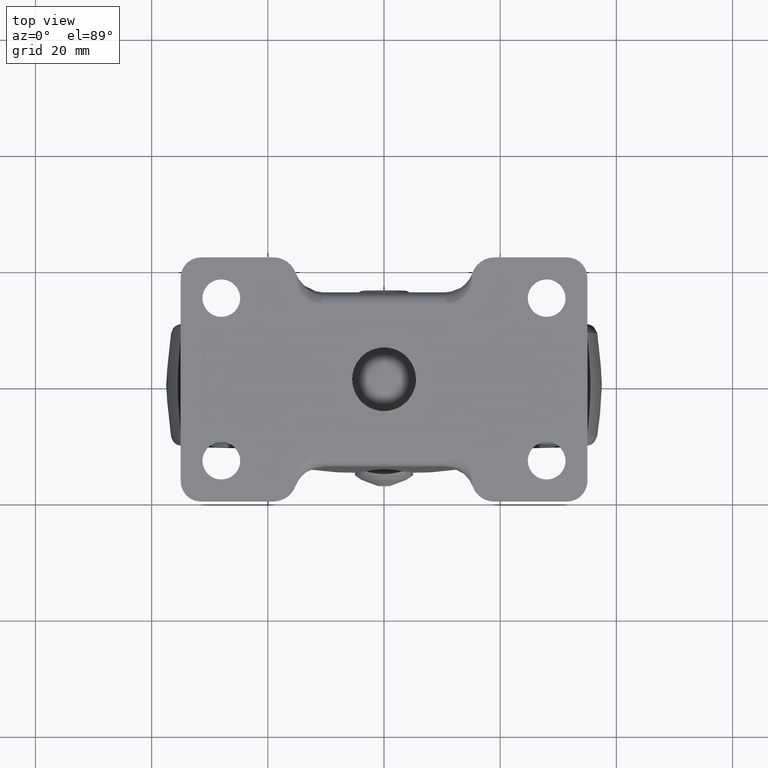
[diagram: clean part render]
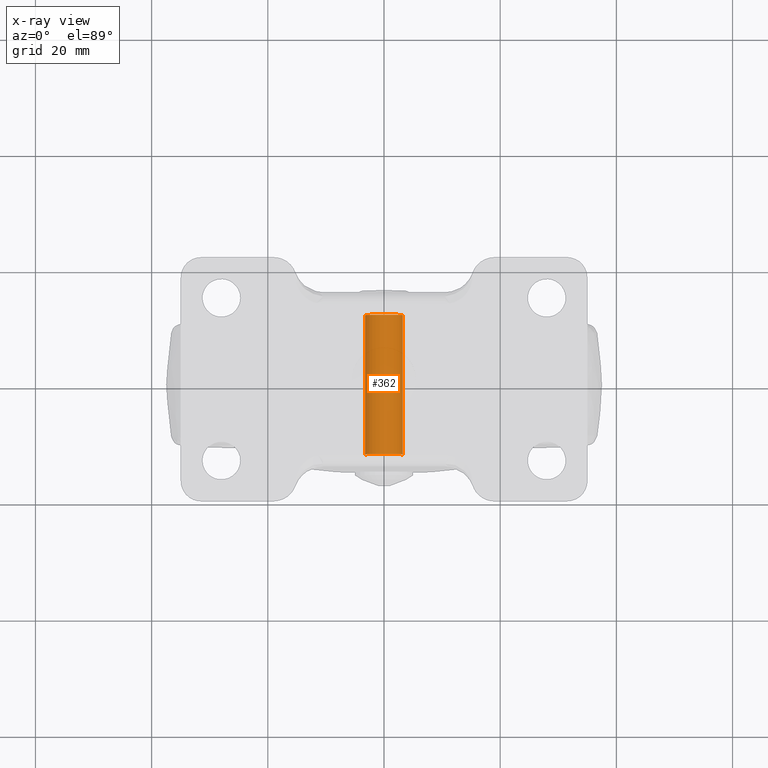
[diagram: x-ray — body ghosted, one internal face saturated and labeled with its STEP entity id]
A machine part, top view, then the same camera in x-ray: the body is ghosted and one INTERNAL B-rep face — a face not visible from any outside direction — is saturated and labeled: STEP entity #362.
In plain terms, the highlighted face is a freeform B-spline surface patch.
Its self-contained STEP definition (entity closure, byte-faithful):
#260=CARTESIAN_POINT('',(3.227280960681807,12.600000000000003,-0.383611262634451));
#261=CARTESIAN_POINT('',(3.238259750207858,12.600000000000001,-0.291247868073416));
#262=CARTESIAN_POINT('',(3.243938094870956,12.600000000000000,-0.198407753488277));
#263=CARTESIAN_POINT('',(3.442345848359235,12.600000000000005,3.045530341382680));
#264=CARTESIAN_POINT('',(0.198407753488278,12.600000000000000,3.243938094870958));
#265=CARTESIAN_POINT('',(-3.045530341382678,12.600000000000005,3.442345848359236));
#266=CARTESIAN_POINT('',(-3.243938094870956,12.600000000000000,0.198407753488280));
#267=CARTESIAN_POINT('',(3.227280960681807,-12.615000000000007,-0.383611262634451));
#268=CARTESIAN_POINT('',(3.238259750207858,-12.615000000000009,-0.291247868073416));
#269=CARTESIAN_POINT('',(3.243938094870956,-12.615000000000000,-0.198407753488277));
#270=CARTESIAN_POINT('',(3.442345848359235,-12.615000000000002,3.045530341382680));
#271=CARTESIAN_POINT('',(0.198407753488278,-12.615000000000000,3.243938094870958));
#272=CARTESIAN_POINT('',(-3.045530341382678,-12.615000000000002,3.442345848359236));
#273=CARTESIAN_POINT('',(-3.243938094870956,-12.615000000000000,0.198407753488280));
#281=(BOUNDED_SURFACE()B_SPLINE_SURFACE(2,1,((#260,#267),(#261,#268),(#262,#269),(#263,#270),(#264,#271),(#265,#272),(#266,#273)),.UNSPECIFIED.,.F.,.F.,.U.)B_SPLINE_SURFACE_WITH_KNOTS((3,2,2,3),(2,2),(0.0,0.215391052434002,5.600167363284053,10.984943674134099),(0.0,25.215000000000011),.UNSPECIFIED.)GEOMETRIC_REPRESENTATION_ITEM()RATIONAL_B_SPLINE_SURFACE(((0.977505800795127,0.977505800795127),(0.988284271247462,0.988284271247462),(1.0,1.0),(0.707106781186548,0.707106781186548),(1.0,1.0),(0.707106781186548,0.707106781186548),(1.0,1.0)))REPRESENTATION_ITEM('')SURFACE());
#282=CARTESIAN_POINT('',(3.227281375343957,-11.999999999999989,-0.383607774093458));
#283=VERTEX_POINT('',#282);
#284=CARTESIAN_POINT('',(0.0,-12.0,3.249999999999886));
#285=VERTEX_POINT('',#284);
#286=CARTESIAN_POINT('',(3.227281375343957,-11.999999999999986,-0.383607774093458));
#287=CARTESIAN_POINT('',(3.249999999999885,-12.000000000000002,-0.192476626158282));
#288=CARTESIAN_POINT('',(3.249999999999885,-12.0,1.211545E-015));
#289=CARTESIAN_POINT('',(3.249999999999886,-12.0,3.249999999999886));
#290=CARTESIAN_POINT('',(0.0,-12.0,3.249999999999886));
#298=(BOUNDED_CURVE()B_SPLINE_CURVE(2,(#286,#287,#288,#289,#290),.UNSPECIFIED.,.F.,.U.)B_SPLINE_CURVE_WITH_KNOTS((3,2,3),(0.229562656200328,0.250000000000000,0.500000000000000),.UNSPECIFIED.)CURVE()GEOMETRIC_REPRESENTATION_ITEM()RATIONAL_B_SPLINE_CURVE((0.956027112257654,0.976056162362067,1.0,0.707106781186548,1.0))REPRESENTATION_ITEM(''));
#299=EDGE_CURVE('',#283,#285,#298,.T.);
#300=ORIENTED_EDGE('',*,*,#299,.T.);
#301=CARTESIAN_POINT('',(-3.243938094866164,-12.0,0.198407753566607));
#302=VERTEX_POINT('',#301);
#303=CARTESIAN_POINT('',(0.0,-12.0,3.249999999999886));
#304=CARTESIAN_POINT('',(-3.057294717295487,-12.0,3.249999999999886));
#305=CARTESIAN_POINT('',(-3.243938094866163,-12.000000000000002,0.198407753566607));
#313=(BOUNDED_CURVE()B_SPLINE_CURVE(2,(#303,#304,#305),.UNSPECIFIED.,.F.,.U.)B_SPLINE_CURVE_WITH_KNOTS((3,3),(0.500000000000000,0.739332962233636),.UNSPECIFIED.)CURVE()GEOMETRIC_REPRESENTATION_ITEM()RATIONAL_B_SPLINE_CURVE((1.0,0.719603993292928,0.976072041655344))REPRESENTATION_ITEM(''));
#314=EDGE_CURVE('',#285,#302,#313,.T.);
#315=ORIENTED_EDGE('',*,*,#314,.T.);
#316=CARTESIAN_POINT('',(-3.243938094866167,12.0,0.198407753566607));
#317=VERTEX_POINT('',#316);
#318=CARTESIAN_POINT('',(-3.243938094866167,12.0,0.198407753566607));
#319=CARTESIAN_POINT('',(-3.243938094866164,-12.0,0.198407753566607));
#320=QUASI_UNIFORM_CURVE('',1,(#318,#319),.UNSPECIFIED.,.F.,.U.);
#321=EDGE_CURVE('',#317,#302,#320,.T.);
#322=ORIENTED_EDGE('',*,*,#321,.F.);
#323=CARTESIAN_POINT('',(0.0,12.0,3.249999999999891));
#324=VERTEX_POINT('',#323);
#325=CARTESIAN_POINT('',(0.0,12.0,3.249999999999891));
#326=CARTESIAN_POINT('',(-3.057294717295490,12.0,3.249999999999891));
#327=CARTESIAN_POINT('',(-3.243938094866167,12.000000000000004,0.198407753566607));
#335=(BOUNDED_CURVE()B_SPLINE_CURVE(2,(#325,#326,#327),.UNSPECIFIED.,.F.,.U.)B_SPLINE_CURVE_WITH_KNOTS((3,3),(0.500000000000000,0.739332962233636),.UNSPECIFIED.)CURVE()GEOMETRIC_REPRESENTATION_ITEM()RATIONAL_B_SPLINE_CURVE((1.0,0.719603993292928,0.976072041655344))REPRESENTATION_ITEM(''));
#336=EDGE_CURVE('',#324,#317,#335,.T.);
#337=ORIENTED_EDGE('',*,*,#336,.F.);
#338=CARTESIAN_POINT('',(3.227281370244231,12.0,-0.383607816997720));
#339=VERTEX_POINT('',#338);
#340=CARTESIAN_POINT('',(3.227281370244231,12.000000000000004,-0.383607816997720));
#341=CARTESIAN_POINT('',(3.249999999999890,12.000000000000002,-0.192476647837195));
#342=CARTESIAN_POINT('',(3.249999999999890,12.0,1.211545E-015));
#343=CARTESIAN_POINT('',(3.249999999999889,12.0,3.249999999999891));
#344=CARTESIAN_POINT('',(0.0,12.0,3.249999999999891));
#352=(BOUNDED_CURVE()B_SPLINE_CURVE(2,(#340,#341,#342,#343,#344),.UNSPECIFIED.,.F.,.U.)B_SPLINE_CURVE_WITH_KNOTS((3,2,3),(0.229562653953557,0.250000000000000,0.500000000000000),.UNSPECIFIED.)CURVE()GEOMETRIC_REPRESENTATION_ITEM()RATIONAL_B_SPLINE_CURVE((0.956027107853884,0.976056159729812,1.0,0.707106781186547,1.0))REPRESENTATION_ITEM(''));
#353=EDGE_CURVE('',#339,#324,#352,.T.);
#354=ORIENTED_EDGE('',*,*,#353,.F.);
#355=CARTESIAN_POINT('',(3.227281370244231,12.0,-0.383607816997720));
#356=CARTESIAN_POINT('',(3.227281375343957,-11.999999999999989,-0.383607774093458));
#357=QUASI_UNIFORM_CURVE('',1,(#355,#356),.UNSPECIFIED.,.F.,.U.);
#358=EDGE_CURVE('',#339,#283,#357,.T.);
#359=ORIENTED_EDGE('',*,*,#358,.T.);
#360=EDGE_LOOP('',(#300,#315,#322,#337,#354,#359));
#361=FACE_OUTER_BOUND('',#360,.T.);
#362=ADVANCED_FACE('',(#361),#281,.F.);